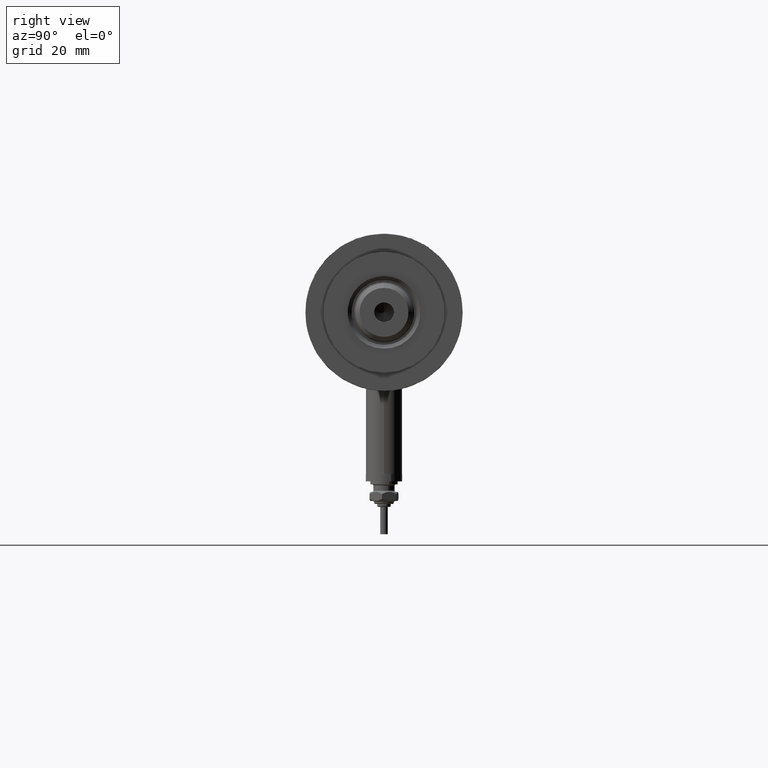
[diagram: clean part render]
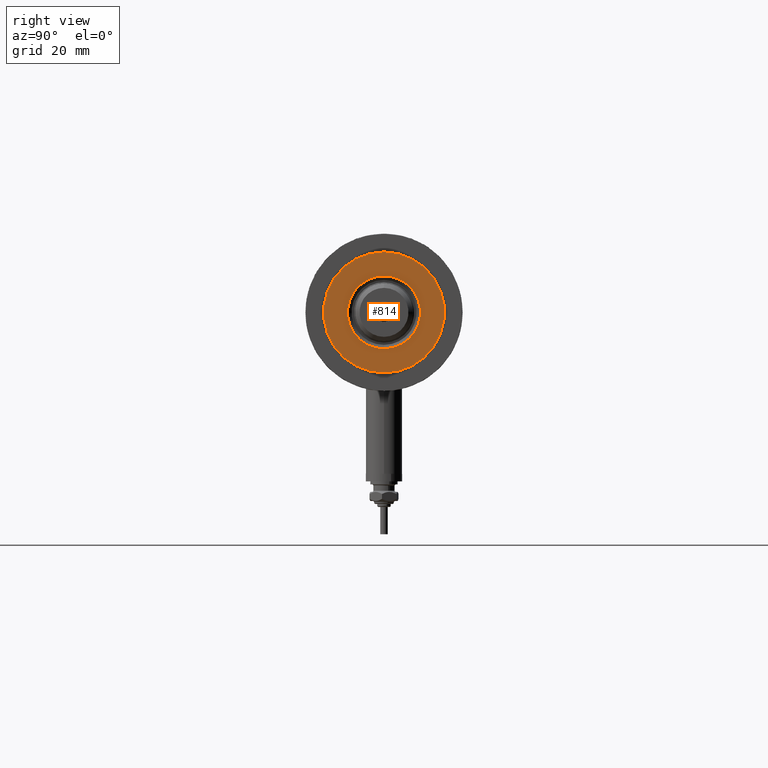
[diagram: same view with one face highlighted and labeled with its STEP entity id]
A machine part, right view. The second image highlights one B-rep face of the part: STEP entity #814.
In plain terms, the highlighted planar face has unit normal (1, 0, -0).
Its self-contained STEP definition (entity closure, byte-faithful):
#16 = EDGE_LOOP ( 'NONE', ( #4101, #4739 ) ) ;
#35 = DIRECTION ( 'NONE',  ( 0.000000000000000000, 0.000000000000000000, 1.000000000000000000 ) ) ;
#179 = AXIS2_PLACEMENT_3D ( 'NONE', #1945, #35, #5857 ) ;
#258 = CARTESIAN_POINT ( 'NONE',  ( 0.000000000000000000, 0.000000000000000000, 33.50000000000000000 ) ) ;
#613 = CIRCLE ( 'NONE', #3880, 19.99999999999999645 ) ;
#814 = ADVANCED_FACE ( 'NONE', ( #5343, #1846 ), #4861, .T. ) ;
#989 = CARTESIAN_POINT ( 'NONE',  ( -12.05000000000000426, 1.475699392972560823E-15, 33.50000000000000000 ) ) ;
#1014 = DIRECTION ( 'NONE',  ( -0.000000000000000000, -0.000000000000000000, -1.000000000000000000 ) ) ;
#1121 = AXIS2_PLACEMENT_3D ( 'NONE', #3238, #5070, #4201 ) ;
#1306 = AXIS2_PLACEMENT_3D ( 'NONE', #1492, #1014, #4925 ) ;
#1492 = CARTESIAN_POINT ( 'NONE',  ( 0.000000000000000000, 0.000000000000000000, 33.50000000000000000 ) ) ;
#1521 = ORIENTED_EDGE ( 'NONE', *, *, #3916, .T. ) ;
#1754 = VERTEX_POINT ( 'NONE', #5262 ) ;
#1846 = FACE_OUTER_BOUND ( 'NONE', #16, .T. ) ;
#1930 = CIRCLE ( 'NONE', #4082, 19.99999999999999645 ) ;
#1945 = CARTESIAN_POINT ( 'NONE',  ( 0.000000000000000000, 0.000000000000000000, 33.50000000000000000 ) ) ;
#3169 = ORIENTED_EDGE ( 'NONE', *, *, #3331, .T. ) ;
#3238 = CARTESIAN_POINT ( 'NONE',  ( 0.000000000000000000, 0.000000000000000000, 33.50000000000000000 ) ) ;
#3328 = VERTEX_POINT ( 'NONE', #3655 ) ;
#3331 = EDGE_CURVE ( 'NONE', #1754, #5459, #4396, .T. ) ;
#3655 = CARTESIAN_POINT ( 'NONE',  ( 19.99999999999999645, 2.449293598294706119E-15, 33.50000000000000000 ) ) ;
#3771 = VERTEX_POINT ( 'NONE', #4985 ) ;
#3880 = AXIS2_PLACEMENT_3D ( 'NONE', #258, #4156, #5663 ) ;
#3916 = EDGE_CURVE ( 'NONE', #5459, #1754, #6124, .T. ) ;
#4082 = AXIS2_PLACEMENT_3D ( 'NONE', #4820, #4163, #6155 ) ;
#4101 = ORIENTED_EDGE ( 'NONE', *, *, #4185, .T. ) ;
#4156 = DIRECTION ( 'NONE',  ( 0.000000000000000000, 0.000000000000000000, 1.000000000000000000 ) ) ;
#4163 = DIRECTION ( 'NONE',  ( 0.000000000000000000, 0.000000000000000000, 1.000000000000000000 ) ) ;
#4185 = EDGE_CURVE ( 'NONE', #3771, #3328, #1930, .T. ) ;
#4201 = DIRECTION ( 'NONE',  ( 1.000000000000000000, 0.000000000000000000, 0.000000000000000000 ) ) ;
#4396 = CIRCLE ( 'NONE', #1121, 12.05000000000000426 ) ;
#4548 = EDGE_CURVE ( 'NONE', #3328, #3771, #613, .T. ) ;
#4739 = ORIENTED_EDGE ( 'NONE', *, *, #4548, .T. ) ;
#4820 = CARTESIAN_POINT ( 'NONE',  ( 0.000000000000000000, 0.000000000000000000, 33.50000000000000000 ) ) ;
#4861 = PLANE ( 'NONE',  #179 ) ;
#4925 = DIRECTION ( 'NONE',  ( 1.000000000000000000, 0.000000000000000000, 0.000000000000000000 ) ) ;
#4985 = CARTESIAN_POINT ( 'NONE',  ( -19.99999999999999645, 0.000000000000000000, 33.50000000000000000 ) ) ;
#5070 = DIRECTION ( 'NONE',  ( -0.000000000000000000, -0.000000000000000000, -1.000000000000000000 ) ) ;
#5262 = CARTESIAN_POINT ( 'NONE',  ( 12.05000000000000426, 0.000000000000000000, 33.50000000000000000 ) ) ;
#5343 = FACE_BOUND ( 'NONE', #5421, .T. ) ;
#5421 = EDGE_LOOP ( 'NONE', ( #3169, #1521 ) ) ;
#5459 = VERTEX_POINT ( 'NONE', #989 ) ;
#5663 = DIRECTION ( 'NONE',  ( 1.000000000000000000, 0.000000000000000000, 0.000000000000000000 ) ) ;
#5857 = DIRECTION ( 'NONE',  ( 1.000000000000000000, 0.000000000000000000, -0.000000000000000000 ) ) ;
#6124 = CIRCLE ( 'NONE', #1306, 12.05000000000000426 ) ;
#6155 = DIRECTION ( 'NONE',  ( 1.000000000000000000, 0.000000000000000000, 0.000000000000000000 ) ) ;